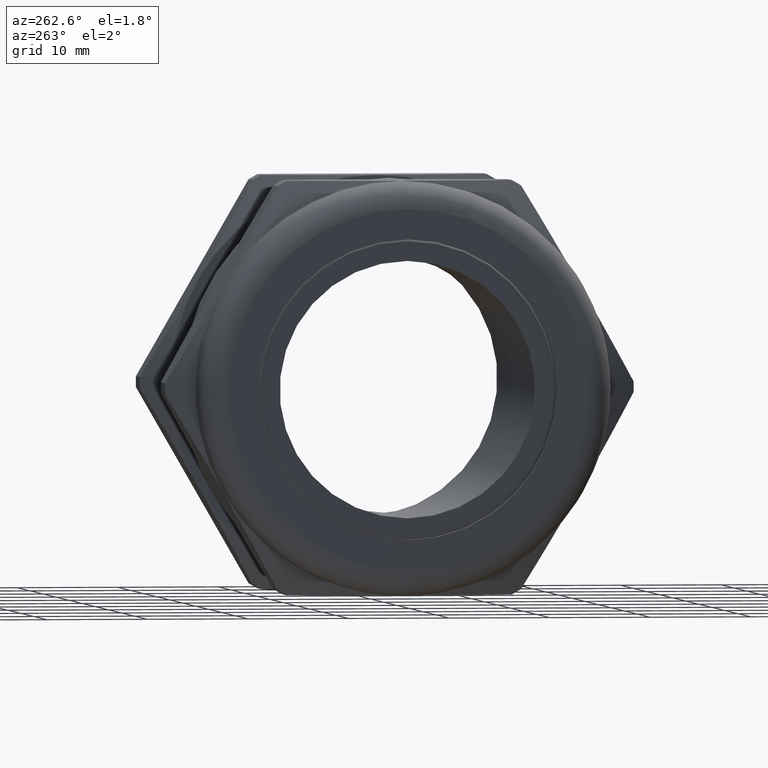
[diagram: clean part render]
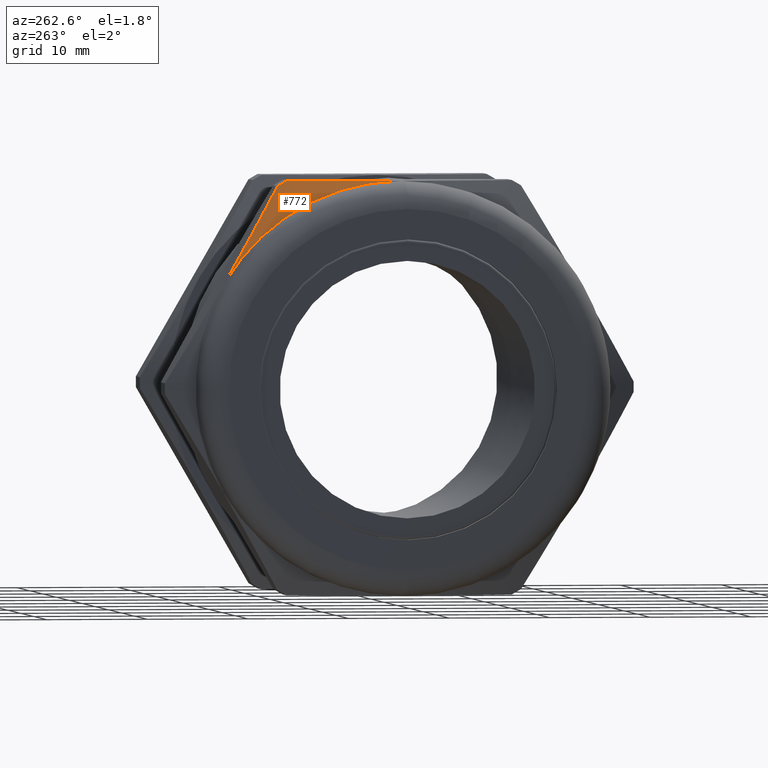
[diagram: same view with one face highlighted and labeled with its STEP entity id]
A machine part, auxiliary view. The second image highlights one B-rep face of the part: STEP entity #772.
In plain terms, the highlighted conical surface has half-angle 60 deg.
Its self-contained STEP definition (entity closure, byte-faithful):
#163 = VERTEX_POINT ( 'NONE', #1699 ) ;
#170 = VERTEX_POINT ( 'NONE', #1675 ) ;
#213 = EDGE_CURVE ( 'NONE', #163, #170, #1788, .T. ) ;
#246 = EDGE_CURVE ( 'NONE', #448, #163, #1830, .T. ) ;
#444 = EDGE_CURVE ( 'NONE', #448, #463, #2229, .T. ) ;
#448 = VERTEX_POINT ( 'NONE', #2281 ) ;
#463 = VERTEX_POINT ( 'NONE', #2300 ) ;
#633 = EDGE_CURVE ( 'NONE', #170, #463, #2657, .T. ) ;
#772 = ADVANCED_FACE ( 'NONE', ( #2879 ), #2878, .T. ) ;
#773 = EDGE_LOOP ( 'NONE', ( #774, #775, #776, #777 ) ) ;
#774 = ORIENTED_EDGE ( 'NONE', *, *, #213, .F. ) ;
#775 = ORIENTED_EDGE ( 'NONE', *, *, #246, .F. ) ;
#776 = ORIENTED_EDGE ( 'NONE', *, *, #444, .T. ) ;
#777 = ORIENTED_EDGE ( 'NONE', *, *, #633, .F. ) ;
#1675 = CARTESIAN_POINT ( 'NONE',  ( -0.5234999999999998500, 0.6971504500464730200, 0.4025000000000000200 ) ) ;
#1699 = CARTESIAN_POINT ( 'NONE',  ( -0.5234999999999998500, 0.0000000000000000000, 0.8050000000000000500 ) ) ;
#1784 = DIRECTION ( 'NONE',  ( 0.0000000000000000000, 0.0000000000000000000, 1.000000000000000000 ) ) ;
#1785 = DIRECTION ( 'NONE',  ( -1.000000000000000000, 0.0000000000000000000, 0.0000000000000000000 ) ) ;
#1786 = CARTESIAN_POINT ( 'NONE',  ( -0.5235000000000000800, 0.0000000000000000000, 0.0000000000000000000 ) ) ;
#1787 = AXIS2_PLACEMENT_3D ( 'NONE', #1786, #1785, #1784 ) ;
#1788 = CIRCLE ( 'NONE', #1787, 0.8050000000000000500 ) ;
#1827 = CARTESIAN_POINT ( 'NONE',  ( -0.4782070241895392500, 0.3692884025708144100, 0.8049999999999998300 ) ) ;
#1828 = CARTESIAN_POINT ( 'NONE',  ( -0.4584326246623294200, 0.4406226163056091200, 0.8050000000000000500 ) ) ;
#1830 = B_SPLINE_CURVE_WITH_KNOTS ( 'NONE', 3,
 ( #1828, #1827, #1875, #1874, #1873, #1872, #1871, #1870, #1869, #1868 ),
 .UNSPECIFIED., .F., .F.,
 ( 4, 2, 2, 2, 4 ),
 ( 0.009848725616978424100, 0.01548936988608225900, 0.01689953095335822200, 0.01830969202063418400, 0.02113001415518610600 ),
 .UNSPECIFIED. ) ;
#1868 = CARTESIAN_POINT ( 'NONE',  ( -0.5234999999999998500, 0.0000000000000000000, 0.8050000000000000500 ) ) ;
#1869 = CARTESIAN_POINT ( 'NONE',  ( -0.5234999999999999700, 0.03716291653879864900, 0.8049999999999998300 ) ) ;
#1870 = CARTESIAN_POINT ( 'NONE',  ( -0.5220071255282176000, 0.07442537529372719700, 0.8050000000000001600 ) ) ;
#1871 = CARTESIAN_POINT ( 'NONE',  ( -0.5175568116207354100, 0.1304664891226521600, 0.8049999999999998300 ) ) ;
#1872 = CARTESIAN_POINT ( 'NONE',  ( -0.5157019484008706900, 0.1491968110204892900, 0.8050000000000000500 ) ) ;
#1873 = CARTESIAN_POINT ( 'NONE',  ( -0.5113189940302311800, 0.1863993153417159200, 0.8050000000000000500 ) ) ;
#1874 = CARTESIAN_POINT ( 'NONE',  ( -0.5087892905955201400, 0.2049062200150610400, 0.8050000000000001600 ) ) ;
#1875 = CARTESIAN_POINT ( 'NONE',  ( -0.4945748231977951700, 0.2970039249234224800, 0.8050000000000000500 ) ) ;
#2226 = DIRECTION ( 'NONE',  ( 0.0000000000000000000, 0.0000000000000000000, -1.000000000000000000 ) ) ;
#2227 = DIRECTION ( 'NONE',  ( -1.000000000000000000, 0.0000000000000000000, 0.0000000000000000000 ) ) ;
#2228 = AXIS2_PLACEMENT_3D ( 'NONE', #2237, #2227, #2226 ) ;
#2229 = CIRCLE ( 'NONE', #2228, 0.9177000000000001800 ) ;
#2237 = CARTESIAN_POINT ( 'NONE',  ( -0.4584326246623293100, 0.0000000000000000000, 0.0000000000000000000 ) ) ;
#2281 = CARTESIAN_POINT ( 'NONE',  ( -0.4584326246623294200, 0.4406226163056091200, 0.8050000000000000500 ) ) ;
#2300 = CARTESIAN_POINT ( 'NONE',  ( -0.4584326246623293100, 0.4768391418936685500, 0.7840903792026209200 ) ) ;
#2647 = CARTESIAN_POINT ( 'NONE',  ( -0.4584326246623293100, 0.4768391418936685500, 0.7840903792026209200 ) ) ;
#2648 = CARTESIAN_POINT ( 'NONE',  ( -0.4783867082804194600, 0.5128303451596885100, 0.7217517865203350000 ) ) ;
#2649 = CARTESIAN_POINT ( 'NONE',  ( -0.4947510405005171600, 0.5491175619668304800, 0.6589004833450981000 ) ) ;
#2650 = CARTESIAN_POINT ( 'NONE',  ( -0.5116989413516661600, 0.6041749731156608200, 0.5635382499021149800 ) ) ;
#2651 = CARTESIAN_POINT ( 'NONE',  ( -0.5160794978735944200, 0.6226320650425677400, 0.5315696289247425800 ) ) ;
#2652 = CARTESIAN_POINT ( 'NONE',  ( -0.5219849548351257500, 0.6597817283977278600, 0.4672245245095256700 ) ) ;
#2653 = CARTESIAN_POINT ( 'NONE',  ( -0.5234999999999999700, 0.6785372933080842100, 0.4347389331601322900 ) ) ;
#2654 = CARTESIAN_POINT ( 'NONE',  ( -0.5234999999999998500, 0.6971504500464730200, 0.4025000000000000200 ) ) ;
#2657 = B_SPLINE_CURVE_WITH_KNOTS ( 'NONE', 3,
 ( #2654, #2653, #2652, #2651, #2650, #2649, #2648, #2647 ),
 .UNSPECIFIED., .F., .F.,
 ( 4, 2, 2, 4 ),
 ( 0.01131174950541887600, 0.01412467415539784100, 0.01693759880537680500, 0.02256344810533474100 ),
 .UNSPECIFIED. ) ;
#2873 = DIRECTION ( 'NONE',  ( 0.0000000000000000000, 0.0000000000000000000, 1.000000000000000000 ) ) ;
#2874 = DIRECTION ( 'NONE',  ( 1.000000000000000000, 0.0000000000000000000, 0.0000000000000000000 ) ) ;
#2875 = AXIS2_PLACEMENT_3D ( 'NONE', #2883, #2874, #2873 ) ;
#2878 = CONICAL_SURFACE ( 'NONE', #2875, 0.8050000000000000500, 1.047197551196600100 ) ;
#2879 = FACE_OUTER_BOUND ( 'NONE', #773, .T. ) ;
#2883 = CARTESIAN_POINT ( 'NONE',  ( -0.5234999999999998500, 0.0000000000000000000, 0.0000000000000000000 ) ) ;